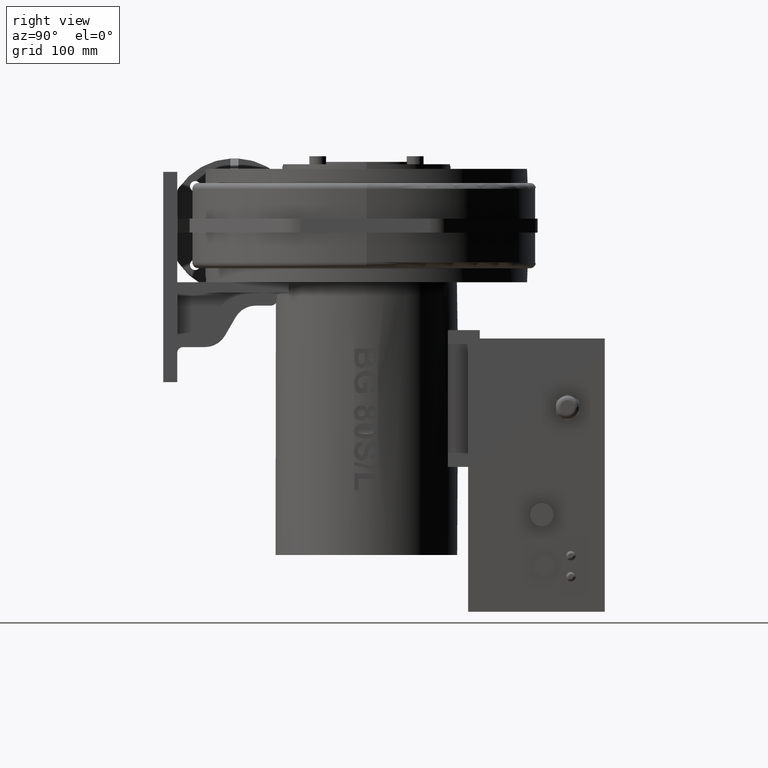
[diagram: clean part render]
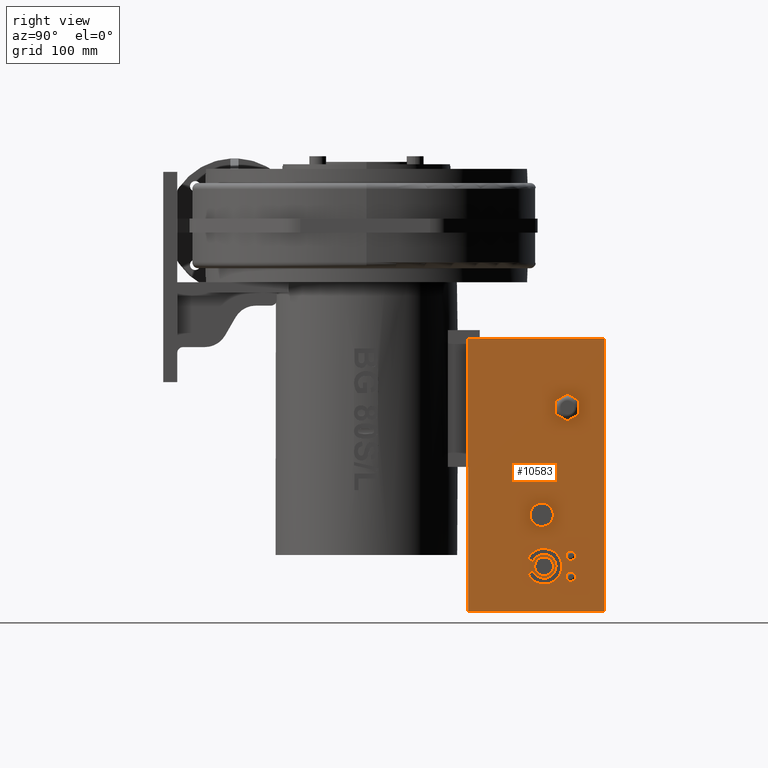
[diagram: same view with one face highlighted and labeled with its STEP entity id]
A machine part, right view. The second image highlights one B-rep face of the part: STEP entity #10583.
In plain terms, the highlighted planar face has unit normal (1, 0, 0).
Its self-contained STEP definition (entity closure, byte-faithful):
#8143=CARTESIAN_POINT('',(68.500000000000099,324.50000000000011,-52.599999999999639));
#8144=VERTEX_POINT('',#8143);
#8151=CARTESIAN_POINT('',(68.500000000002203,324.50000000000011,-286.59999999999968));
#8152=VERTEX_POINT('',#8151);
#8153=CARTESIAN_POINT('',(68.500000000002203,324.50000000000011,-286.59999999999968));
#8154=DIRECTION('',(0.0,0.0,1.0));
#8155=VECTOR('',#8154,234.00000000000003);
#8156=LINE('',#8153,#8155);
#8157=EDGE_CURVE('',#8152,#8144,#8156,.T.);
#9189=CARTESIAN_POINT('',(68.500000000001918,299.50000000000011,-256.59999999999962));
#9190=VERTEX_POINT('',#9189);
#9191=CARTESIAN_POINT('',(68.500000000001933,295.50000000000006,-256.59999999999962));
#9192=DIRECTION('',(-1.0,0.0,0.0));
#9193=DIRECTION('',(0.0,-1.0,0.0));
#9194=AXIS2_PLACEMENT_3D('',#9191,#9192,#9193);
#9195=CIRCLE('',#9194,4.0);
#9196=EDGE_CURVE('',#9190,#9190,#9195,.T.);
#9310=CARTESIAN_POINT('',(68.500000000001762,299.50000000000011,-238.59999999999962));
#9311=VERTEX_POINT('',#9310);
#9312=CARTESIAN_POINT('',(68.500000000001776,295.50000000000006,-238.59999999999962));
#9313=DIRECTION('',(-1.0,0.0,0.0));
#9314=DIRECTION('',(0.0,-1.0,0.0));
#9315=AXIS2_PLACEMENT_3D('',#9312,#9313,#9314);
#9316=CIRCLE('',#9315,4.0);
#9317=EDGE_CURVE('',#9311,#9311,#9316,.T.);
#9347=CARTESIAN_POINT('',(68.500000000001805,263.03023479175937,-243.67749481825746));
#9348=VERTEX_POINT('',#9347);
#9355=CARTESIAN_POINT('',(68.500000000001876,263.03023479175937,-251.52250518174185));
#9356=VERTEX_POINT('',#9355);
#9357=CARTESIAN_POINT('',(68.500000000001847,272.50000000000006,-247.59999999999962));
#9358=DIRECTION('',(1.0,3.029566E-015,1.254887E-015));
#9359=DIRECTION('',(-3.279178E-015,0.923879532511286,0.382683432365091));
#9360=AXIS2_PLACEMENT_3D('',#9357,#9358,#9359);
#9361=CIRCLE('',#9360,10.249999999999998);
#9362=EDGE_CURVE('',#9356,#9348,#9361,.T.);
#9387=CARTESIAN_POINT('',(68.500000000001904,258.41083712920295,-253.43592234356726));
#9388=VERTEX_POINT('',#9387);
#9389=CARTESIAN_POINT('',(68.500000000001904,258.41083712920295,-253.43592234356728));
#9390=DIRECTION('',(-5.684342E-015,0.923879532511285,0.382683432365093));
#9391=VECTOR('',#9390,4.999999999999996);
#9392=LINE('',#9389,#9391);
#9393=EDGE_CURVE('',#9388,#9356,#9392,.T.);
#9419=CARTESIAN_POINT('',(68.500000000001791,258.41083712920295,-241.76407765643199));
#9420=VERTEX_POINT('',#9419);
#9421=CARTESIAN_POINT('',(68.500000000001847,272.50000000000006,-247.59999999999962));
#9422=DIRECTION('',(-1.0,-3.029566E-015,-1.254887E-015));
#9423=DIRECTION('',(3.279178E-015,-0.923879532511286,-0.382683432365091));
#9424=AXIS2_PLACEMENT_3D('',#9421,#9422,#9423);
#9425=CIRCLE('',#9424,15.250000000000002);
#9426=EDGE_CURVE('',#9420,#9388,#9425,.T.);
#9449=CARTESIAN_POINT('',(68.500000000001805,263.03023479175943,-243.67749481825749));
#9450=DIRECTION('',(-2.842171E-015,-0.923879532511287,0.382683432365089));
#9451=VECTOR('',#9450,5.000000000000048);
#9452=LINE('',#9449,#9451);
#9453=EDGE_CURVE('',#9348,#9420,#9452,.T.);
#9487=CARTESIAN_POINT('',(68.500000000001847,280.50000000000006,-247.59999999999962));
#9488=VERTEX_POINT('',#9487);
#9489=CARTESIAN_POINT('',(68.500000000001847,272.50000000000006,-247.59999999999962));
#9490=DIRECTION('',(-1.0,0.0,0.0));
#9491=DIRECTION('',(0.0,-1.0,0.0));
#9492=AXIS2_PLACEMENT_3D('',#9489,#9490,#9491);
#9493=CIRCLE('',#9492,8.0);
#9494=EDGE_CURVE('',#9488,#9488,#9493,.T.);
#9640=CARTESIAN_POINT('',(68.500000000001378,275.40747728811186,-195.09999999999968));
#9641=VERTEX_POINT('',#9640);
#9648=CARTESIAN_POINT('',(68.500000000001378,265.59252271188825,-195.09999999999968));
#9649=VERTEX_POINT('',#9648);
#9650=CARTESIAN_POINT('',(68.500000000001364,265.59252271188825,-195.09999999999968));
#9651=DIRECTION('',(0.0,1.0,0.0));
#9652=VECTOR('',#9651,9.814954576223613);
#9653=LINE('',#9650,#9652);
#9654=EDGE_CURVE('',#9649,#9641,#9653,.T.);
#9678=CARTESIAN_POINT('',(68.50000000000145,280.31495457622373,-203.59999999999971));
#9679=VERTEX_POINT('',#9678);
#9686=CARTESIAN_POINT('',(68.500000000001378,275.40747728811186,-195.09999999999968));
#9687=DIRECTION('',(7.239389E-015,0.500000000000002,-0.866025403784437));
#9688=VECTOR('',#9687,9.814954576223684);
#9689=LINE('',#9686,#9688);
#9690=EDGE_CURVE('',#9641,#9679,#9689,.T.);
#9709=CARTESIAN_POINT('',(68.500000000001535,275.40747728811186,-212.09999999999965));
#9710=VERTEX_POINT('',#9709);
#9717=CARTESIAN_POINT('',(68.500000000001464,280.31495457622373,-203.59999999999968));
#9718=DIRECTION('',(7.239389E-015,-0.500000000000005,-0.866025403784436));
#9719=VECTOR('',#9718,9.814954576223636);
#9720=LINE('',#9717,#9719);
#9721=EDGE_CURVE('',#9679,#9710,#9720,.T.);
#9740=CARTESIAN_POINT('',(68.500000000001535,265.59252271188825,-212.09999999999965));
#9741=VERTEX_POINT('',#9740);
#9748=CARTESIAN_POINT('',(68.500000000001521,275.40747728811186,-212.09999999999971));
#9749=DIRECTION('',(0.0,-1.0,0.0));
#9750=VECTOR('',#9749,9.814954576223613);
#9751=LINE('',#9748,#9750);
#9752=EDGE_CURVE('',#9710,#9741,#9751,.T.);
#9771=CARTESIAN_POINT('',(68.50000000000145,260.68504542377644,-203.59999999999962));
#9772=VERTEX_POINT('',#9771);
#9779=CARTESIAN_POINT('',(68.500000000001521,265.59252271188825,-212.09999999999962));
#9780=DIRECTION('',(-7.239389E-015,-0.499999999999999,0.866025403784439));
#9781=VECTOR('',#9780,9.814954576223633);
#9782=LINE('',#9779,#9781);
#9783=EDGE_CURVE('',#9741,#9772,#9782,.T.);
#9801=CARTESIAN_POINT('',(68.500000000001435,260.68504542377644,-203.59999999999965));
#9802=DIRECTION('',(-7.239389E-015,0.499999999999999,0.866025403784439));
#9803=VECTOR('',#9802,9.814954576223633);
#9804=LINE('',#9801,#9803);
#9805=EDGE_CURVE('',#9772,#9649,#9804,.T.);
#10278=CARTESIAN_POINT('',(68.500000000000568,282.50000000000006,-105.82649730810344));
#10279=VERTEX_POINT('',#10278);
#10286=CARTESIAN_POINT('',(68.500000000000668,282.50000000000006,-117.37350269189596));
#10287=VERTEX_POINT('',#10286);
#10288=CARTESIAN_POINT('',(68.500000000000682,282.50000000000006,-117.37350269189594));
#10289=DIRECTION('',(0.0,0.0,1.0));
#10290=VECTOR('',#10289,11.547005383792509);
#10291=LINE('',#10288,#10290);
#10292=EDGE_CURVE('',#10287,#10279,#10291,.T.);
#10316=CARTESIAN_POINT('',(68.500000000000526,292.50000000000006,-100.05299461620717));
#10317=VERTEX_POINT('',#10316);
#10324=CARTESIAN_POINT('',(68.500000000000583,282.50000000000011,-105.82649730810343));
#10325=DIRECTION('',(-4.922784E-015,0.866025403784438,0.500000000000002));
#10326=VECTOR('',#10325,11.547005383792529);
#10327=LINE('',#10324,#10326);
#10328=EDGE_CURVE('',#10279,#10317,#10327,.T.);
#10347=CARTESIAN_POINT('',(68.500000000000568,302.50000000000006,-105.82649730810333));
#10348=VERTEX_POINT('',#10347);
#10355=CARTESIAN_POINT('',(68.500000000000526,292.50000000000006,-100.05299461620717));
#10356=DIRECTION('',(4.922784E-015,0.866025403784441,-0.499999999999995));
#10357=VECTOR('',#10356,11.547005383792415);
#10358=LINE('',#10355,#10357);
#10359=EDGE_CURVE('',#10317,#10348,#10358,.T.);
#10378=CARTESIAN_POINT('',(68.500000000000668,302.50000000000011,-117.37350269189585));
#10379=VERTEX_POINT('',#10378);
#10386=CARTESIAN_POINT('',(68.500000000000568,302.50000000000006,-105.82649730810331));
#10387=DIRECTION('',(0.0,0.0,-1.0));
#10388=VECTOR('',#10387,11.547005383792524);
#10389=LINE('',#10386,#10388);
#10390=EDGE_CURVE('',#10348,#10379,#10389,.T.);
#10409=CARTESIAN_POINT('',(68.500000000000725,292.50000000000011,-123.14700538379219));
#10410=VERTEX_POINT('',#10409);
#10417=CARTESIAN_POINT('',(68.500000000000682,302.50000000000011,-117.37350269189585));
#10418=DIRECTION('',(4.922784E-015,-0.866025403784436,-0.500000000000004));
#10419=VECTOR('',#10418,11.547005383792548);
#10420=LINE('',#10417,#10419);
#10421=EDGE_CURVE('',#10379,#10410,#10420,.T.);
#10439=CARTESIAN_POINT('',(68.500000000000725,292.50000000000011,-123.14700538379219));
#10440=DIRECTION('',(-4.922784E-015,-0.866025403784441,0.499999999999996));
#10441=VECTOR('',#10440,11.547005383792548);
#10442=LINE('',#10439,#10441);
#10443=EDGE_CURVE('',#10410,#10287,#10442,.T.);
#10511=CARTESIAN_POINT('',(68.500000000002188,207.50000000000006,-286.59999999999968));
#10512=VERTEX_POINT('',#10511);
#10513=CARTESIAN_POINT('',(68.500000000002188,207.50000000000006,-286.59999999999968));
#10514=DIRECTION('',(0.0,1.0,0.0));
#10515=VECTOR('',#10514,117.0);
#10516=LINE('',#10513,#10515);
#10517=EDGE_CURVE('',#10512,#8152,#10516,.T.);
#10529=CARTESIAN_POINT('',(68.500000000002188,207.50000000000006,-286.59999999999968));
#10530=DIRECTION('',(1.0,0.0,0.0));
#10531=DIRECTION('',(0.0,1.0,0.0));
#10532=AXIS2_PLACEMENT_3D('',#10529,#10530,#10531);
#10533=PLANE('',#10532);
#10534=ORIENTED_EDGE('',*,*,#8157,.T.);
#10535=CARTESIAN_POINT('',(68.500000000000085,207.50000000000006,-52.599999999999639));
#10536=VERTEX_POINT('',#10535);
#10537=CARTESIAN_POINT('',(68.500000000000085,207.50000000000006,-52.599999999999639));
#10538=DIRECTION('',(0.0,1.0,0.0));
#10539=VECTOR('',#10538,117.0);
#10540=LINE('',#10537,#10539);
#10541=EDGE_CURVE('',#10536,#8144,#10540,.T.);
#10542=ORIENTED_EDGE('',*,*,#10541,.F.);
#10543=CARTESIAN_POINT('',(68.500000000002188,207.50000000000006,-286.59999999999968));
#10544=DIRECTION('',(0.0,0.0,1.0));
#10545=VECTOR('',#10544,234.00000000000003);
#10546=LINE('',#10543,#10545);
#10547=EDGE_CURVE('',#10512,#10536,#10546,.T.);
#10548=ORIENTED_EDGE('',*,*,#10547,.F.);
#10549=ORIENTED_EDGE('',*,*,#10517,.T.);
#10550=EDGE_LOOP('',(#10534,#10542,#10548,#10549));
#10551=FACE_OUTER_BOUND('',#10550,.T.);
#10552=ORIENTED_EDGE('',*,*,#9196,.T.);
#10553=EDGE_LOOP('',(#10552));
#10554=FACE_BOUND('',#10553,.T.);
#10555=ORIENTED_EDGE('',*,*,#9317,.T.);
#10556=EDGE_LOOP('',(#10555));
#10557=FACE_BOUND('',#10556,.T.);
#10558=ORIENTED_EDGE('',*,*,#9362,.T.);
#10559=ORIENTED_EDGE('',*,*,#9453,.T.);
#10560=ORIENTED_EDGE('',*,*,#9426,.T.);
#10561=ORIENTED_EDGE('',*,*,#9393,.T.);
#10562=EDGE_LOOP('',(#10558,#10559,#10560,#10561));
#10563=FACE_BOUND('',#10562,.T.);
#10564=ORIENTED_EDGE('',*,*,#9494,.T.);
#10565=EDGE_LOOP('',(#10564));
#10566=FACE_BOUND('',#10565,.T.);
#10567=ORIENTED_EDGE('',*,*,#9654,.T.);
#10568=ORIENTED_EDGE('',*,*,#9690,.T.);
#10569=ORIENTED_EDGE('',*,*,#9721,.T.);
#10570=ORIENTED_EDGE('',*,*,#9752,.T.);
#10571=ORIENTED_EDGE('',*,*,#9783,.T.);
#10572=ORIENTED_EDGE('',*,*,#9805,.T.);
#10573=EDGE_LOOP('',(#10567,#10568,#10569,#10570,#10571,#10572));
#10574=FACE_BOUND('',#10573,.T.);
#10575=ORIENTED_EDGE('',*,*,#10292,.T.);
#10576=ORIENTED_EDGE('',*,*,#10328,.T.);
#10577=ORIENTED_EDGE('',*,*,#10359,.T.);
#10578=ORIENTED_EDGE('',*,*,#10390,.T.);
#10579=ORIENTED_EDGE('',*,*,#10421,.T.);
#10580=ORIENTED_EDGE('',*,*,#10443,.T.);
#10581=EDGE_LOOP('',(#10575,#10576,#10577,#10578,#10579,#10580));
#10582=FACE_BOUND('',#10581,.T.);
#10583=ADVANCED_FACE('',(#10551,#10554,#10557,#10563,#10566,#10574,#10582),#10533,.T.);